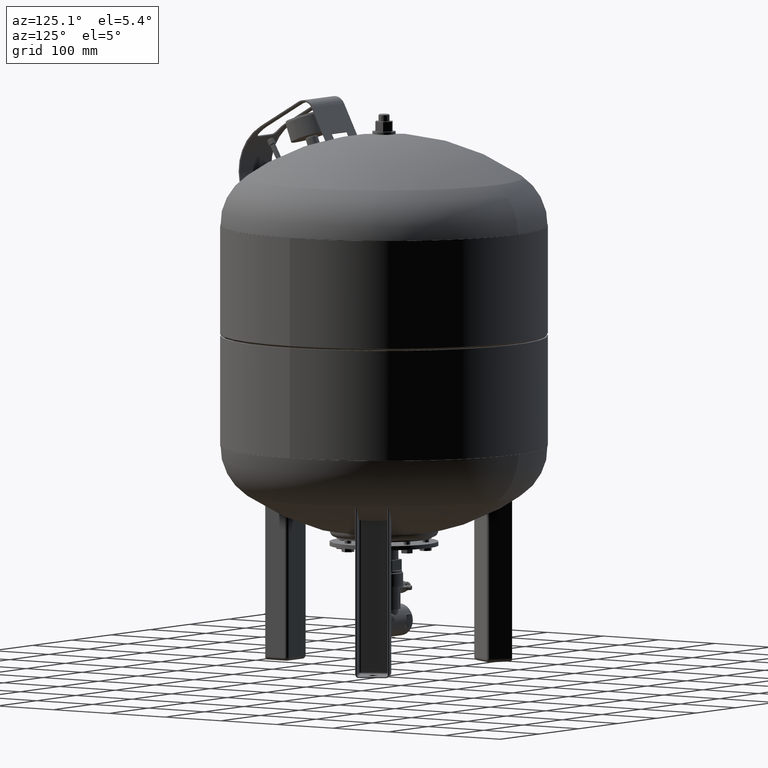
[diagram: clean part render]
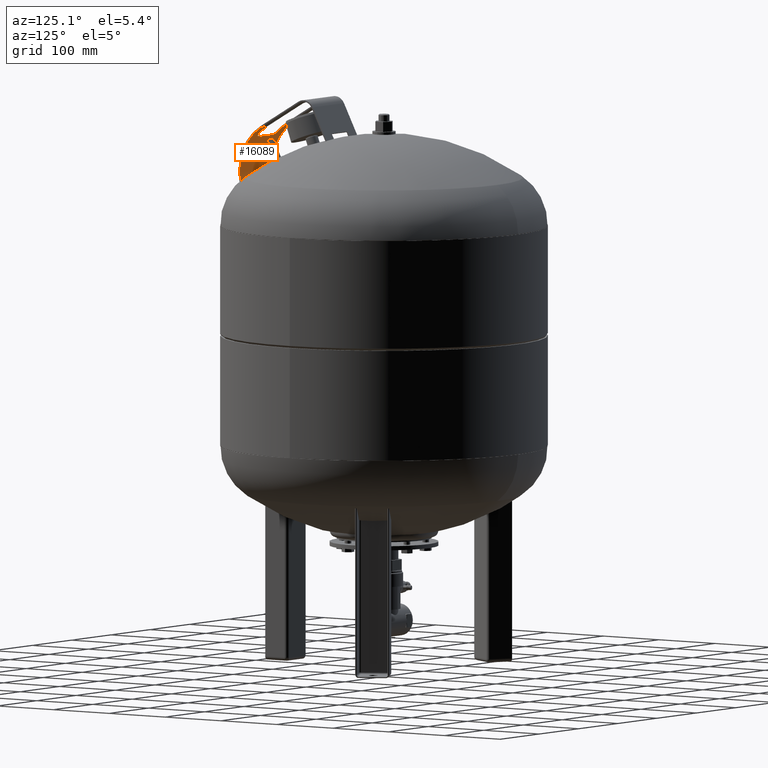
[diagram: same view with one face highlighted and labeled with its STEP entity id]
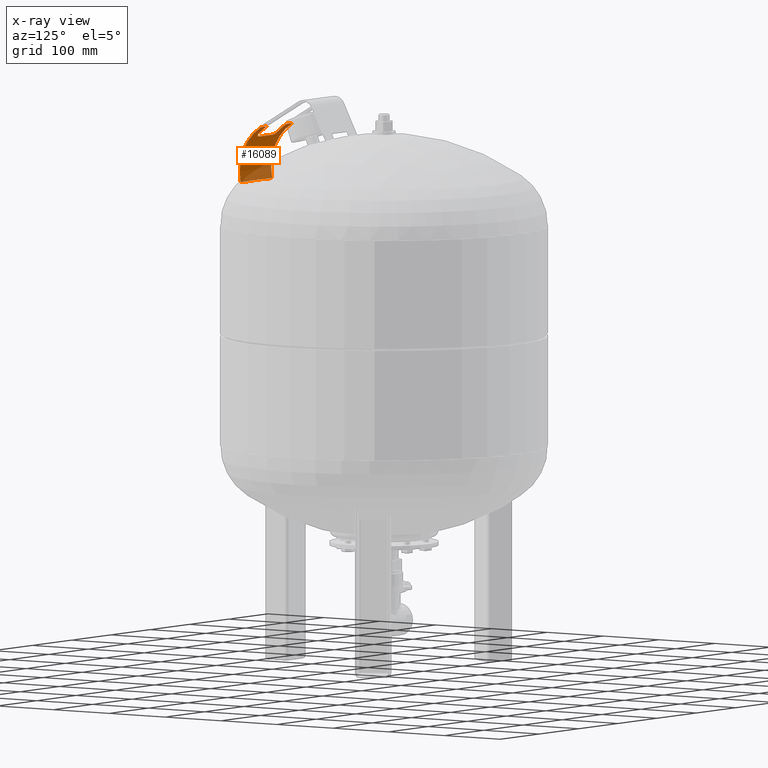
[diagram: x-ray of the same camera — body ghosted, the highlighted face saturated]
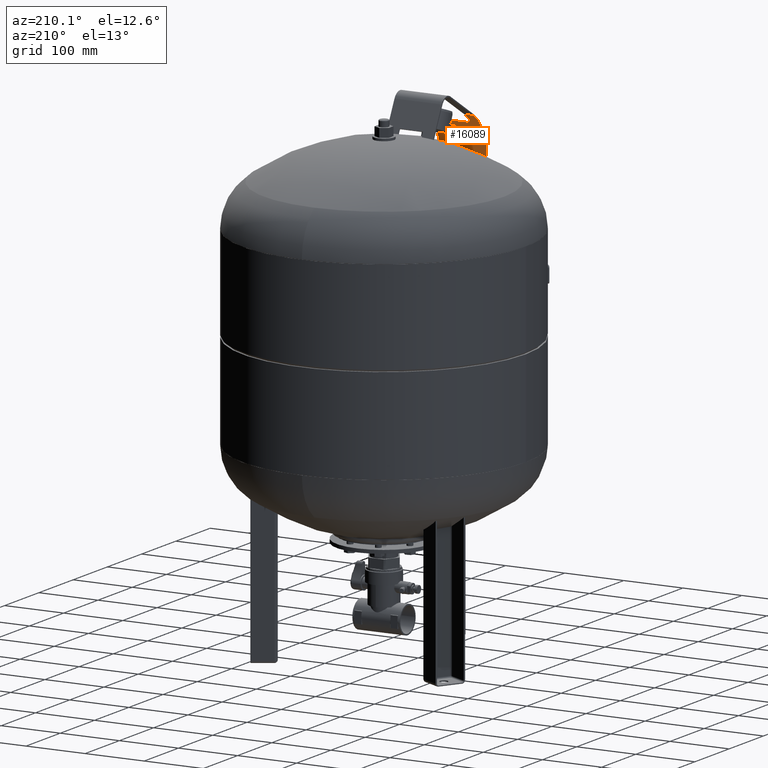
[diagram: same view with one face highlighted and labeled with its STEP entity id]
A machine part, auxiliary view. The second image highlights one B-rep face of the part: STEP entity #16089.
The next image is the same camera in x-ray: the body ghosted, the highlighted face saturated — about 21% of this face is hidden behind the body in this view.
A second angle (auxiliary view) of the same face is appended — the face is thin or edge-on in the first view.
In plain terms, the highlighted cylindrical surface (partial cylindrical patch) has radius 77 mm, axis along (1, -0, -0).
Its self-contained STEP definition (entity closure, byte-faithful):
#15481=CARTESIAN_POINT('',(19.999999999999954,-228.358879790388390,701.666210289233160));
#15482=VERTEX_POINT('',#15481);
#15483=CARTESIAN_POINT('',(-20.000000000000046,-228.358879790388390,701.666210289233160));
#15484=VERTEX_POINT('',#15483);
#15485=CARTESIAN_POINT('',(19.999999999999954,-228.358879790388390,701.666210289233160));
#15486=DIRECTION('',(-1.0,0.0,0.0));
#15487=VECTOR('',#15486,40.0);
#15488=LINE('',#15485,#15487);
#15489=EDGE_CURVE('',#15482,#15484,#15488,.T.);
#15692=CARTESIAN_POINT('',(-25.000000000000007,-206.094623981544630,773.529464788992980));
#15693=VERTEX_POINT('',#15692);
#15694=CARTESIAN_POINT('',(-17.000000000000036,-211.538319328068380,767.795963928919040));
#15695=VERTEX_POINT('',#15694);
#15696=CARTESIAN_POINT('',(-25.000000000000007,-206.094623981544600,773.529464788992980));
#15697=CARTESIAN_POINT('',(-25.000054252147955,-206.828523549911410,772.831985344680220));
#15698=CARTESIAN_POINT('',(-24.803387375114617,-207.541617588711600,772.125783190027280));
#15699=CARTESIAN_POINT('',(-24.026548571467888,-208.872152242460000,770.760342961548190));
#15700=CARTESIAN_POINT('',(-23.444225060752583,-209.471665437080390,770.118540358591640));
#15701=CARTESIAN_POINT('',(-21.994813563525764,-210.454620906592770,769.039579997799820));
#15702=CARTESIAN_POINT('',(-21.150371259298847,-210.835155187688800,768.607293934368840));
#15703=CARTESIAN_POINT('',(-19.723168150516244,-211.242967235628610,768.139319075855950));
#15704=CARTESIAN_POINT('',(-19.204348212705032,-211.351158980168350,768.013846272994440));
#15705=CARTESIAN_POINT('',(-18.122102899651374,-211.500375363387860,767.840379077036570));
#15706=CARTESIAN_POINT('',(-17.561256978929780,-211.538337223651410,767.795943029106750));
#15707=CARTESIAN_POINT('',(-17.000000000000036,-211.538319328068330,767.795963928919150));
#15708=B_SPLINE_CURVE_WITH_KNOTS('',3,(#15696,#15697,#15698,#15699,#15700,#15701,#15702,#15703,#15704,#15705,#15706,#15707),.UNSPECIFIED.,.F.,.U.,(4,2,2,2,2,4),(0.0,0.303739615323379,0.616196552934148,0.919310560861628,1.081828421039831,1.250261438767904),.UNSPECIFIED.);
#15709=EDGE_CURVE('',#15693,#15695,#15708,.T.);
#15750=CARTESIAN_POINT('',(16.999999999999957,-211.538319328068300,767.795963928919150));
#15751=VERTEX_POINT('',#15750);
#15752=CARTESIAN_POINT('',(-17.000000000000036,-211.538319328068380,767.795963928919040));
#15753=DIRECTION('',(1.0,0.0,0.0));
#15754=VECTOR('',#15753,33.999999999999993);
#15755=LINE('',#15752,#15754);
#15756=EDGE_CURVE('',#15695,#15751,#15755,.T.);
#15952=CARTESIAN_POINT('',(24.999999999999957,-206.094623981544630,773.529464788992980));
#15953=VERTEX_POINT('',#15952);
#15954=CARTESIAN_POINT('',(16.999999999999950,-211.538319328068330,767.795963928919150));
#15955=CARTESIAN_POINT('',(18.024904396707623,-211.538352006970680,767.795925764031150));
#15956=CARTESIAN_POINT('',(19.043232444110473,-211.412124680621760,767.944418297204720));
#15957=CARTESIAN_POINT('',(20.926164008012258,-210.918427477283730,768.512333960351840));
#15958=CARTESIAN_POINT('',(21.777211219910154,-210.562039980793320,768.918701270909420));
#15959=CARTESIAN_POINT('',(23.236481664263501,-209.642834562061720,769.932880221480560));
#15960=CARTESIAN_POINT('',(23.830948027298856,-209.087495471755090,770.531733463913610));
#15961=CARTESIAN_POINT('',(24.501397863279763,-208.095752703660710,771.559440927069320));
#15962=CARTESIAN_POINT('',(24.688186523835196,-207.712127978804940,771.949258470748650));
#15963=CARTESIAN_POINT('',(24.937471431400777,-206.916937344345740,772.739097087090840));
#15964=CARTESIAN_POINT('',(25.000030588657975,-206.508414104123120,773.136209203081650));
#15965=CARTESIAN_POINT('',(24.999999999999922,-206.094623981544600,773.529464788992980));
#15966=B_SPLINE_CURVE_WITH_KNOTS('',3,(#15954,#15955,#15956,#15957,#15958,#15959,#15960,#15961,#15962,#15963,#15964,#15965),.UNSPECIFIED.,.F.,.U.,(4,2,2,2,2,4),(0.0,0.307471319381771,0.606340435479461,0.905895855446849,1.078295054299567,1.249366122079316),.UNSPECIFIED.);
#15967=EDGE_CURVE('',#15751,#15953,#15966,.T.);
#15996=CARTESIAN_POINT('',(-3.131184E-014,-153.049929203743350,717.714947359117220));
#15997=DIRECTION('',(1.0,-2.041297E-016,-1.193991E-017));
#15998=DIRECTION('',(-9.268022E-017,-0.504527623815021,0.863395550606771));
#15999=AXIS2_PLACEMENT_3D('',#15996,#15997,#15998);
#16000=CYLINDRICAL_SURFACE('',#15999,77.000000000000028);
#16001=CARTESIAN_POINT('',(39.999999999999957,-191.898556237500030,784.196404755838440));
#16002=VERTEX_POINT('',#16001);
#16003=CARTESIAN_POINT('',(39.999999999999950,-228.282438435258630,701.311607615943900));
#16004=VERTEX_POINT('',#16003);
#16005=CARTESIAN_POINT('',(39.999999999999957,-153.049929203743350,717.714947359117220));
#16006=DIRECTION('',(1.000000000000000,-4.675973E-017,8.001969E-017));
#16007=DIRECTION('',(-9.268022E-017,-0.504527623815021,0.863395550606771));
#16008=AXIS2_PLACEMENT_3D('',#16005,#16006,#16007);
#16009=CIRCLE('',#16008,77.000000000000014);
#16010=EDGE_CURVE('',#16002,#16004,#16009,.T.);
#16011=ORIENTED_EDGE('',*,*,#16010,.T.);
#16012=CARTESIAN_POINT('',(19.999999999999954,-228.282438435258630,701.311607615943900));
#16013=VERTEX_POINT('',#16012);
#16014=CARTESIAN_POINT('',(19.999999999999954,-228.282438435258630,701.311607615943900));
#16015=DIRECTION('',(1.0,0.0,0.0));
#16016=VECTOR('',#16015,19.999999999999996);
#16017=LINE('',#16014,#16016);
#16018=EDGE_CURVE('',#16013,#16004,#16017,.T.);
#16019=ORIENTED_EDGE('',*,*,#16018,.F.);
#16020=CARTESIAN_POINT('',(19.999999999999975,-153.049929203743350,717.714947359117220));
#16021=DIRECTION('',(-1.000000000000000,4.675973E-017,-8.001969E-017));
#16022=DIRECTION('',(-9.268022E-017,-0.504527623815021,0.863395550606771));
#16023=AXIS2_PLACEMENT_3D('',#16020,#16021,#16022);
#16024=CIRCLE('',#16023,77.000000000000014);
#16025=EDGE_CURVE('',#16013,#15482,#16024,.T.);
#16026=ORIENTED_EDGE('',*,*,#16025,.T.);
#16027=ORIENTED_EDGE('',*,*,#15489,.T.);
#16028=CARTESIAN_POINT('',(-20.000000000000046,-228.282438435258630,701.311607615943900));
#16029=VERTEX_POINT('',#16028);
#16030=CARTESIAN_POINT('',(-20.000000000000032,-153.049929203743350,717.714947359117220));
#16031=DIRECTION('',(1.000000000000000,-4.675973E-017,8.001969E-017));
#16032=DIRECTION('',(-9.268022E-017,-0.504527623815021,0.863395550606771));
#16033=AXIS2_PLACEMENT_3D('',#16030,#16031,#16032);
#16034=CIRCLE('',#16033,77.000000000000014);
#16035=EDGE_CURVE('',#15484,#16029,#16034,.T.);
#16036=ORIENTED_EDGE('',*,*,#16035,.T.);
#16037=CARTESIAN_POINT('',(-40.000000000000050,-228.282438435258630,701.311607615943900));
#16038=VERTEX_POINT('',#16037);
#16039=CARTESIAN_POINT('',(-40.000000000000050,-228.282438435258630,701.311607615943900));
#16040=DIRECTION('',(1.0,0.0,0.0));
#16041=VECTOR('',#16040,20.000000000000004);
#16042=LINE('',#16039,#16041);
#16043=EDGE_CURVE('',#16038,#16029,#16042,.T.);
#16044=ORIENTED_EDGE('',*,*,#16043,.F.);
#16045=CARTESIAN_POINT('',(-40.000000000000036,-191.898556237500030,784.196404755838440));
#16046=VERTEX_POINT('',#16045);
#16047=CARTESIAN_POINT('',(-40.000000000000028,-153.049929203743350,717.714947359117220));
#16048=DIRECTION('',(-1.000000000000000,4.675973E-017,-8.001969E-017));
#16049=DIRECTION('',(-9.268022E-017,-0.504527623815021,0.863395550606771));
#16050=AXIS2_PLACEMENT_3D('',#16047,#16048,#16049);
#16051=CIRCLE('',#16050,77.000000000000014);
#16052=EDGE_CURVE('',#16038,#16046,#16051,.T.);
#16053=ORIENTED_EDGE('',*,*,#16052,.T.);
#16054=CARTESIAN_POINT('',(-25.000000000000039,-191.898556237500030,784.196404755838440));
#16055=VERTEX_POINT('',#16054);
#16056=CARTESIAN_POINT('',(-25.000000000000039,-191.898556237500030,784.196404755838440));
#16057=DIRECTION('',(-1.0,0.0,0.0));
#16058=VECTOR('',#16057,14.999999999999996);
#16059=LINE('',#16056,#16058);
#16060=EDGE_CURVE('',#16055,#16046,#16059,.T.);
#16061=ORIENTED_EDGE('',*,*,#16060,.F.);
#16062=CARTESIAN_POINT('',(-25.000000000000032,-153.049929203743350,717.714947359117220));
#16063=DIRECTION('',(1.000000000000000,-4.675973E-017,8.001969E-017));
#16064=DIRECTION('',(-9.268022E-017,-0.504527623815021,0.863395550606771));
#16065=AXIS2_PLACEMENT_3D('',#16062,#16063,#16064);
#16066=CIRCLE('',#16065,77.000000000000014);
#16067=EDGE_CURVE('',#16055,#15693,#16066,.T.);
#16068=ORIENTED_EDGE('',*,*,#16067,.T.);
#16069=ORIENTED_EDGE('',*,*,#15709,.T.);
#16070=ORIENTED_EDGE('',*,*,#15756,.T.);
#16071=ORIENTED_EDGE('',*,*,#15967,.T.);
#16072=CARTESIAN_POINT('',(24.999999999999961,-191.898556237500030,784.196404755838440));
#16073=VERTEX_POINT('',#16072);
#16074=CARTESIAN_POINT('',(24.999999999999968,-153.049929203743350,717.714947359117220));
#16075=DIRECTION('',(-1.000000000000000,4.675973E-017,-8.001969E-017));
#16076=DIRECTION('',(-9.268022E-017,-0.504527623815021,0.863395550606771));
#16077=AXIS2_PLACEMENT_3D('',#16074,#16075,#16076);
#16078=CIRCLE('',#16077,77.000000000000014);
#16079=EDGE_CURVE('',#15953,#16073,#16078,.T.);
#16080=ORIENTED_EDGE('',*,*,#16079,.T.);
#16081=CARTESIAN_POINT('',(39.999999999999957,-191.898556237500030,784.196404755838440));
#16082=DIRECTION('',(-1.0,0.0,0.0));
#16083=VECTOR('',#16082,14.999999999999996);
#16084=LINE('',#16081,#16083);
#16085=EDGE_CURVE('',#16002,#16073,#16084,.T.);
#16086=ORIENTED_EDGE('',*,*,#16085,.F.);
#16087=EDGE_LOOP('',(#16011,#16019,#16026,#16027,#16036,#16044,#16053,#16061,#16068,#16069,#16070,#16071,#16080,#16086));
#16088=FACE_OUTER_BOUND('',#16087,.T.);
#16089=ADVANCED_FACE('',(#16088),#16000,.F.);